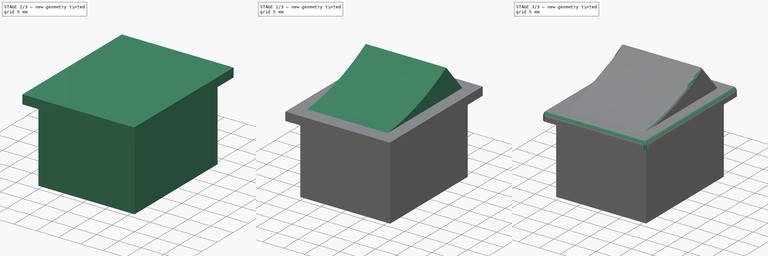
[diagram: build sequence overview — one tinted view per stage of 3, left to right]
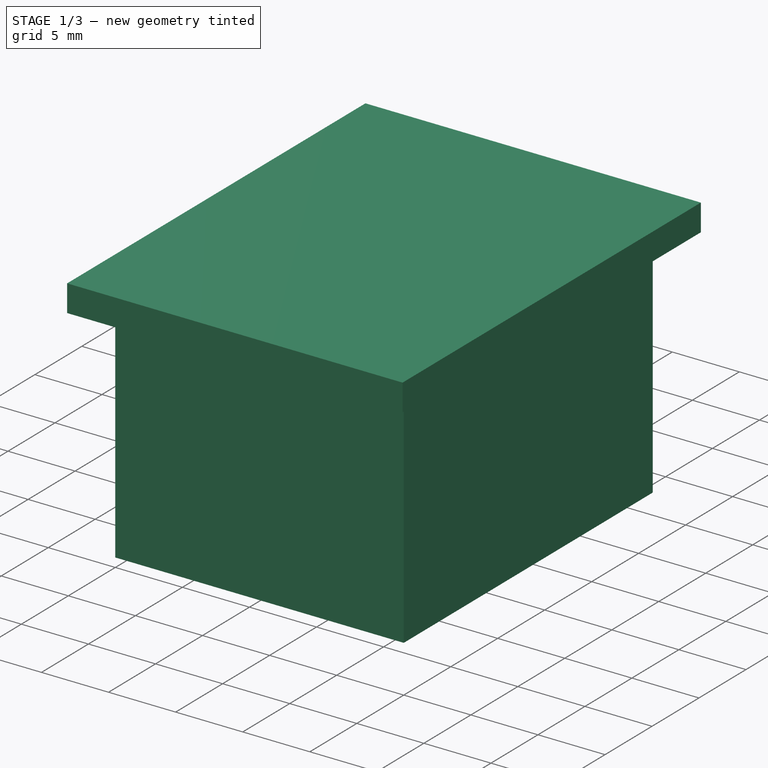
[diagram: stage 1 of 3 — iso view after this stage's code; geometry added in this stage tinted green]
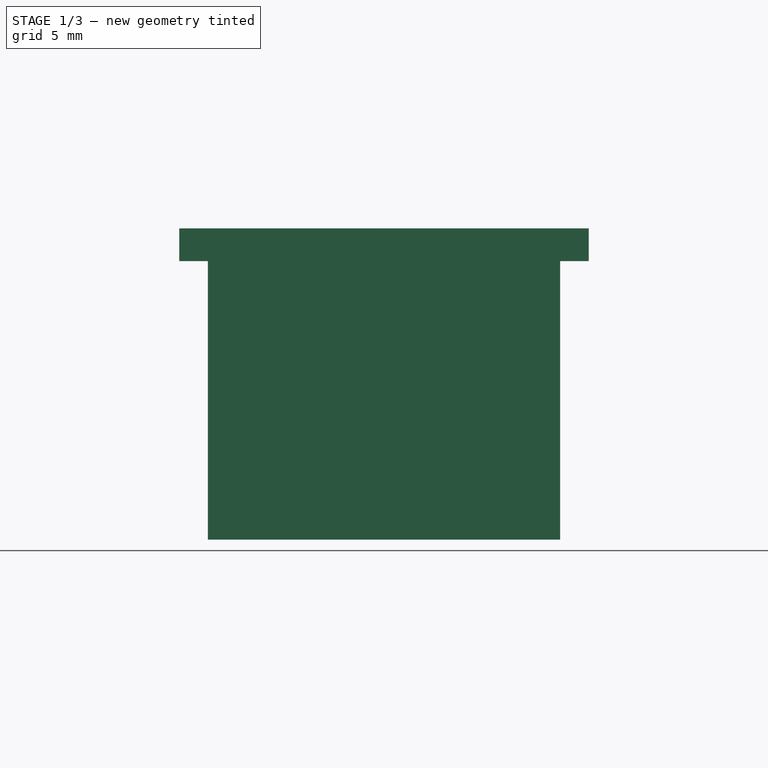
[diagram: stage 1 of 3 — front view after this stage's code; geometry added in this stage tinted green]
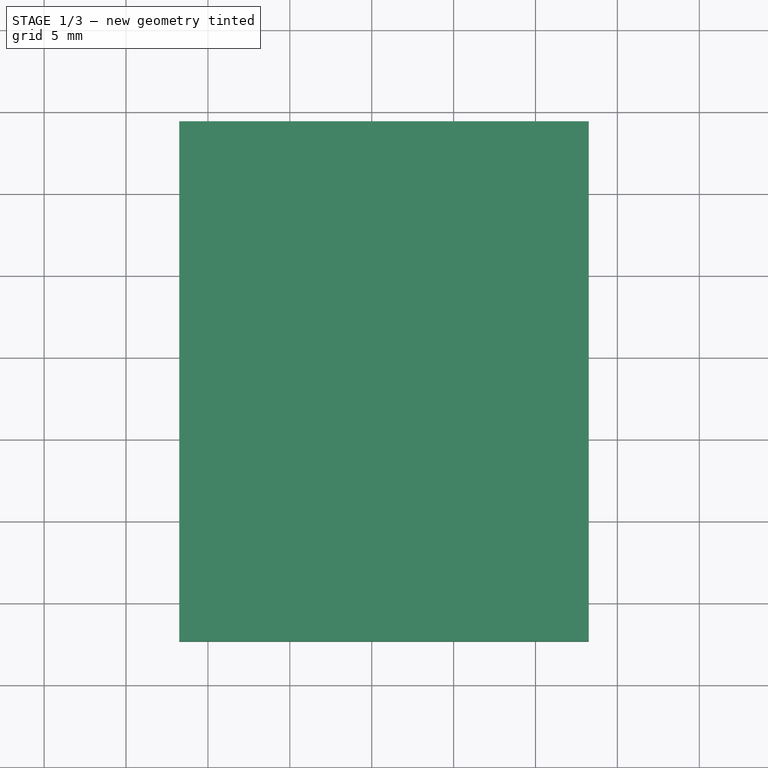
[diagram: stage 1 of 3 — top view after this stage's code; geometry added in this stage tinted green]
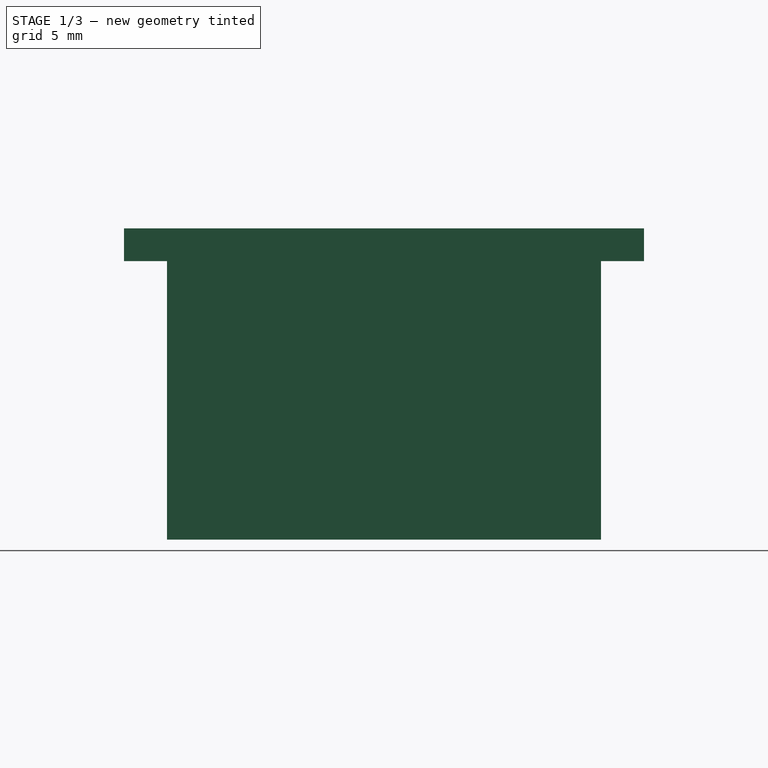
[diagram: stage 1 of 3 — right view after this stage's code; geometry added in this stage tinted green]
FCSTD DOCUMENT  (FreeCAD 0.17R8934 (Git))
Label: power_switch
License: All rights reserved
LicenseURL: http://en.wikipedia.org/wiki/All_rights_reserved
objects: Sketcher::SketchObject×4, PartDesign::Pad×3, PartDesign::Fillet×2, PartDesign::Pocket×1, PartDesign::Body×1, Part::Feature×1
note: 16 computed .brp shape members not serialized (recipe doc carries the construction recipe); baked Part::Feature solids carry a one-line shape summary decoded from their .brp

FEATURE [Sketcher::SketchObject] Sketch
  MapMode = 5
  Support = -> [XY_Plane]
  sketch-geometry (4):
    g0: LineSegment StartX=0 StartY=0 StartZ=0 EndX=21.5 EndY=0 EndZ=0
    g1: LineSegment StartX=21.5 StartY=0 StartZ=0 EndX=21.5 EndY=26.5 EndZ=0
    g2: LineSegment StartX=21.5 StartY=26.5 StartZ=0 EndX=0 EndY=26.5 EndZ=0
    g3: LineSegment StartX=0 StartY=26.5 StartZ=0 EndX=0 EndY=0 EndZ=0
  constraints (11):
    c: Coincident(g0,g1)
    c: Coincident(g1,g2)
    c: Coincident(g2,g3)
    c: Coincident(g3,g0)
    c: Horizontal(g0)
    c: Horizontal(g2)
    c: Vertical(g1)
    c: Vertical(g3)
    c: Coincident(g0,g-1)
    c: DistanceY(g3,g3) = 26.5
    c: DistanceX(g2,g2) = 21.5
FEATURE [PartDesign::Pad] Pad
  Length = 17
  Length2 = 100
  Profile = -> Sketch
  Type = 0
FEATURE [Sketcher::SketchObject] Sketch001
  ExternalGeometry = -> [Pad]
  MapMode = 5
  Placement = pos=(0,0,17) rot=(0,0,1;0rad)
  Support = -> [Pad]
  sketch-geometry (4):
    g0: LineSegment StartX=-1.75 StartY=-2.625 StartZ=0 EndX=23.25 EndY=-2.625 EndZ=0
    g1: LineSegment StartX=23.25 StartY=-2.625 StartZ=0 EndX=23.25 EndY=29.125 EndZ=0
    g2: LineSegment StartX=23.25 StartY=29.125 StartZ=0 EndX=-1.75 EndY=29.125 EndZ=0
    g3: LineSegment StartX=-1.75 StartY=29.125 StartZ=0 EndX=-1.75 EndY=-2.625 EndZ=0
  constraints (12):
    c: Coincident(g0,g1)
    c: Coincident(g1,g2)
    c: Coincident(g2,g3)
    c: Coincident(g3,g0)
    c: Horizontal(g0)
    c: Horizontal(g2)
    c: Vertical(g1)
    c: Vertical(g3)
    c: DistanceX(g2,g2) = 25
    c: DistanceY(g3,g3) = 31.75
    c: DistanceX(g0,g-1) = 1.75
    c: DistanceY(g0,g-1) = 2.625
FEATURE [PartDesign::Pad] Pad001
  BaseFeature = -> Pad
  Length = 2
  Length2 = 100
  Profile = -> Sketch001
  Type = 0
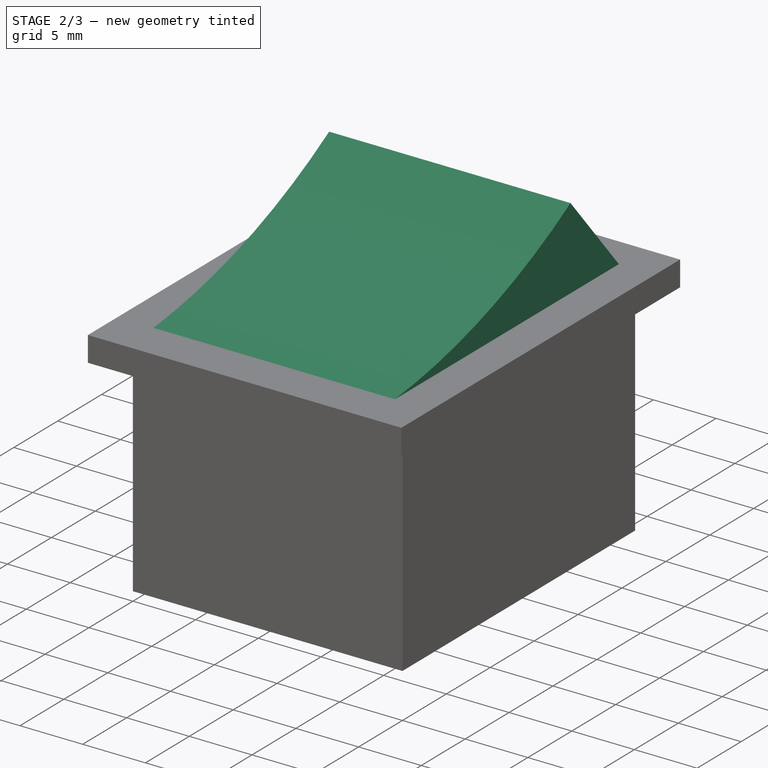
[diagram: stage 2 of 3 — iso view after this stage's code; geometry added in this stage tinted green]
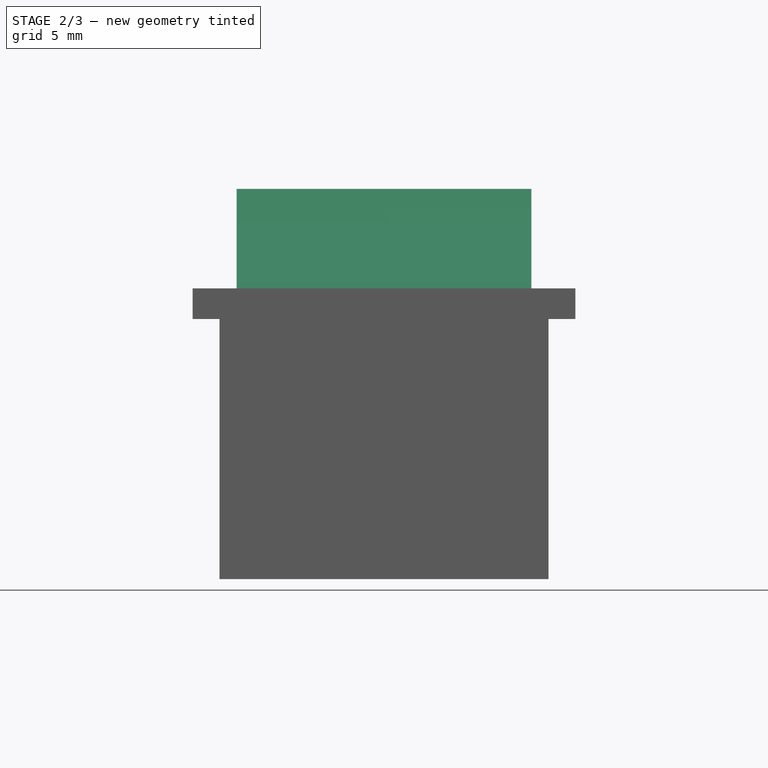
[diagram: stage 2 of 3 — front view after this stage's code; geometry added in this stage tinted green]
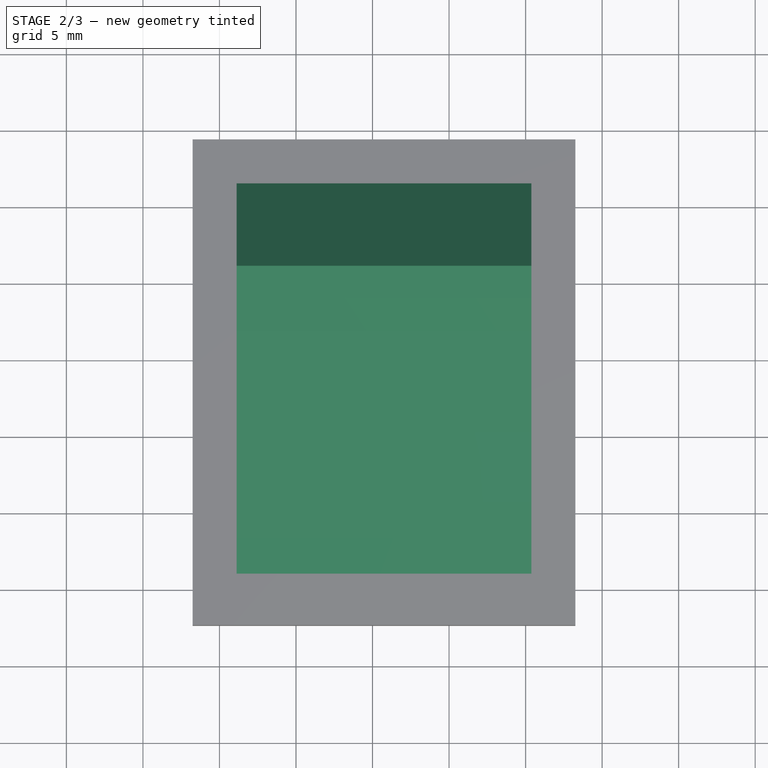
[diagram: stage 2 of 3 — top view after this stage's code; geometry added in this stage tinted green]
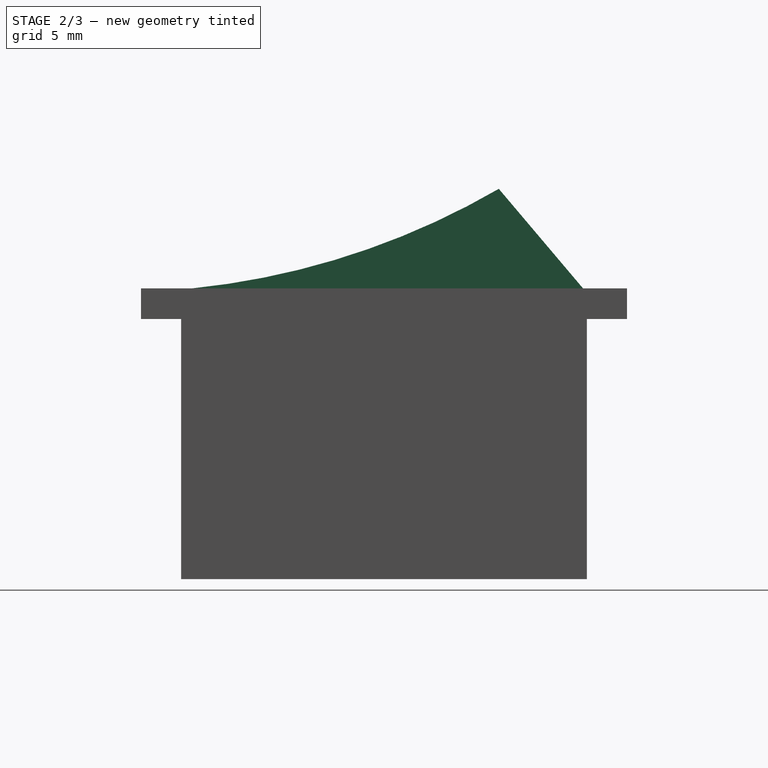
[diagram: stage 2 of 3 — right view after this stage's code; geometry added in this stage tinted green]
FEATURE [Sketcher::SketchObject] Sketch002
  ExternalGeometry = -> [Pad001]
  MapMode = 5
  Placement = pos=(0,0,19) rot=(0,0,1;0rad)
  Support = -> [Pad001]
  sketch-geometry (4):
    g0: LineSegment StartX=1.125 StartY=26.25 StartZ=0 EndX=20.375 EndY=26.25 EndZ=0
    g1: LineSegment StartX=20.375 StartY=26.25 StartZ=0 EndX=20.375 EndY=0.75 EndZ=0
    g2: LineSegment StartX=20.375 StartY=0.75 StartZ=0 EndX=1.125 EndY=0.75 EndZ=0
    g3: LineSegment StartX=1.125 StartY=0.75 StartZ=0 EndX=1.125 EndY=26.25 EndZ=0
  constraints (13):
    c: Coincident(g0,g1)
    c: Coincident(g1,g2)
    c: Coincident(g2,g3)
    c: Coincident(g3,g0)
    c: Horizontal(g0)
    c: Horizontal(g2)
    c: Vertical(g1)
    c: Vertical(g3)
    c: DistanceX(g2,g2) = 19.25
    c: DistanceY(g1,g1) = 25.5
    c: DistanceX(g0,g-3) = 2.875
    c: DistanceY(g0,g-3) = 2.875
    c: DistanceX(g-3,g-3) = 25
FEATURE [PartDesign::Pad] Pad002
  BaseFeature = -> Pad001
  Length = 6.5
  Length2 = 100
  Profile = -> Sketch002
  Type = 0
FEATURE [Sketcher::SketchObject] Sketch003
  ExternalGeometry = -> [Pad002]
  MapMode = 5
  Placement = pos=(20.375,0,0) rot=(0.57735,0.57735,0.57735;2.0944rad)
  Support = -> [Pad002]
  sketch-geometry (5):
    g0: LineSegment StartX=26.25 StartY=19 StartZ=0 EndX=20.75 EndY=25.5 EndZ=0
    g1: LineSegment StartX=0.75 StartY=19 StartZ=0 EndX=0.75 EndY=29 EndZ=0
    g2: LineSegment StartX=0.75 StartY=29 StartZ=0 EndX=26.25 EndY=29 EndZ=0
    g3: LineSegment StartX=26.25 StartY=29 StartZ=0 EndX=26.25 EndY=19 EndZ=0
    g4: ArcOfCircle CenterX=-4.35871 CenterY=68.7383 CenterZ=0 NormalX=0 NormalY=0 NormalZ=1 Radius=50 StartAngle=4.81474 EndAngle=5.2385
  constraints (14):
    c: Vertical(g1)
    c: Coincident(g1,g2)
    c: Horizontal(g2)
    c: Coincident(g2,g3)
    c: Coincident(g0,g3)
    c: Vertical(g3)
    c: DistanceX(g0,g2) = 5.5
    c: Coincident(g4,g0)
    c: Coincident(g4,g1)
    c: Coincident(g0,g-4)
    c: Coincident(g1,g-3)
    c: PointOnObject(g0,g-5)
    c: Radius(g4) = 50
    c: DistanceY(g1,g1) = 10
FEATURE [PartDesign::Pocket] Pocket
  BaseFeature = -> Pad002
  Length = 0
  Profile = -> Sketch003
  Type = 3
  UpToFace = -> Pad002 [Face13]
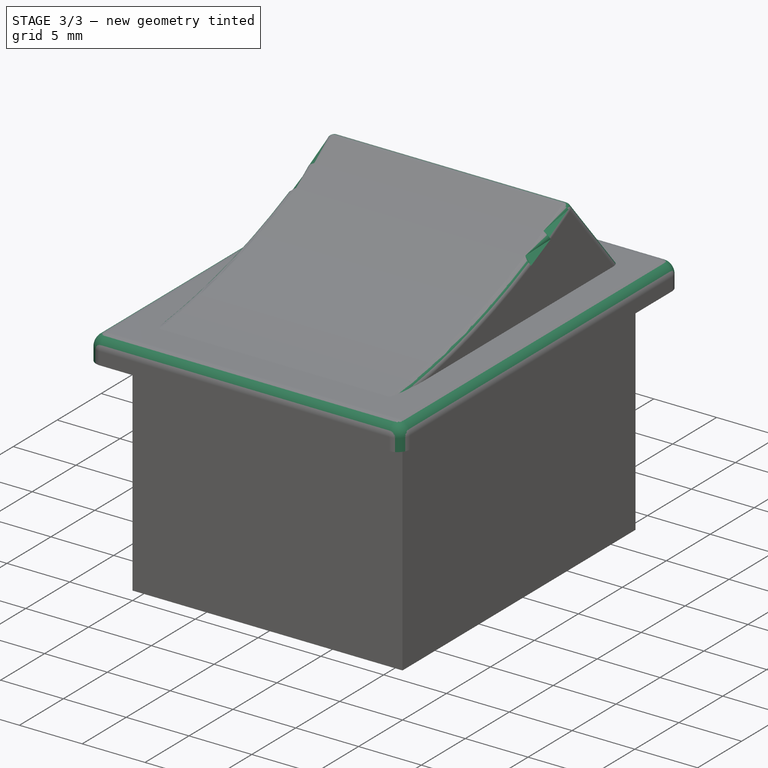
[diagram: stage 3 of 3 — iso view after this stage's code; geometry added in this stage tinted green]
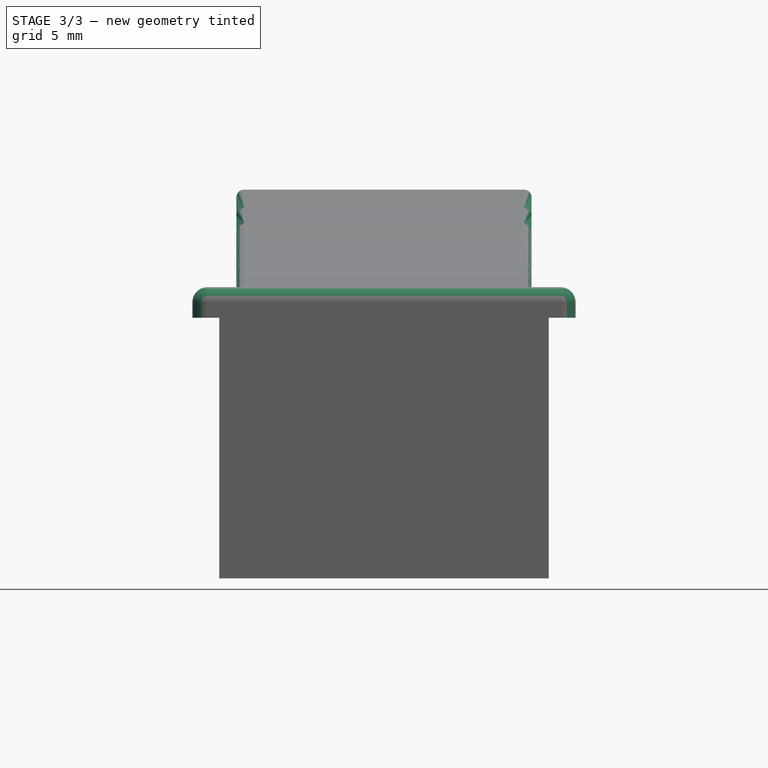
[diagram: stage 3 of 3 — front view after this stage's code; geometry added in this stage tinted green]
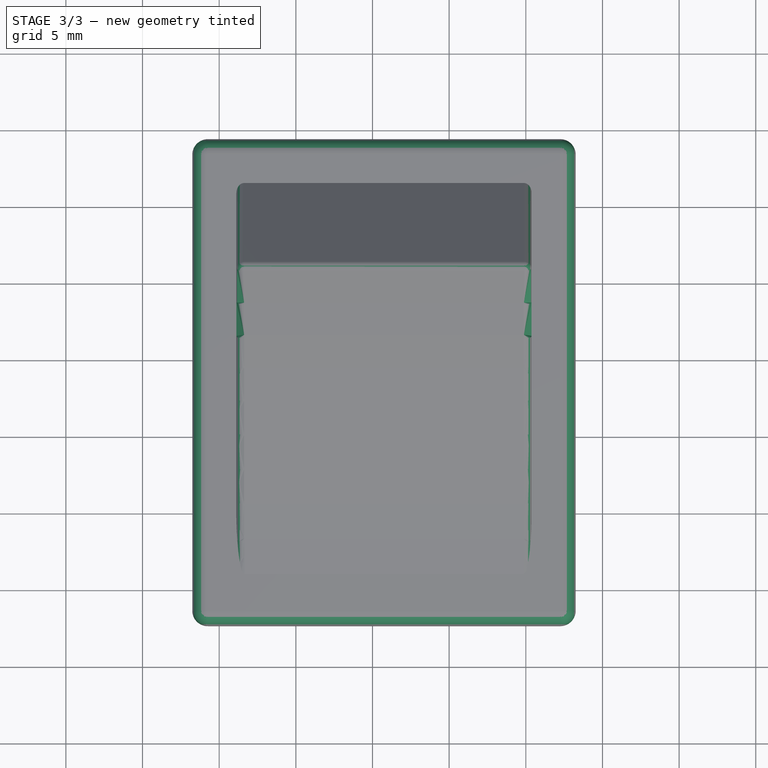
[diagram: stage 3 of 3 — top view after this stage's code; geometry added in this stage tinted green]
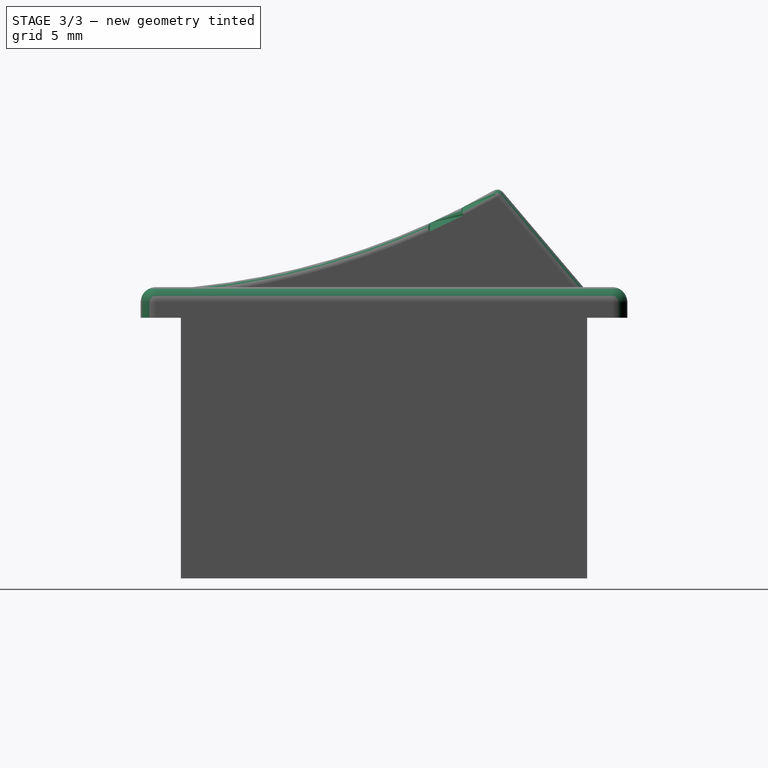
[diagram: stage 3 of 3 — right view after this stage's code; geometry added in this stage tinted green]
FEATURE [PartDesign::Fillet] Fillet
  Base = -> Pocket [Edge30,Edge32,Edge33,Edge31,Edge29]
  BaseFeature = -> Pocket
  Radius = 0.5
FEATURE [PartDesign::Fillet] Fillet001
  Base = -> Fillet [Edge11,Edge32,Edge12,Edge30,Edge10,Edge9,Edge28,Edge27]
  BaseFeature = -> Fillet
  Radius = 1
FEATURE [PartDesign::Body] Body
  Model = -> [Sketch,Pad,Sketch001,Pad001,Sketch002,Pad002,Sketch003,Pocket,Fillet,Fillet001]
  Origin = -> BodyOrigin
  Tip = -> Fillet001
FEATURE [Part::Feature] Fillet001001  label="Fillet002"
  shape: bbox 25 x 31.75 x 25.36 mm, 34 faces (baked)
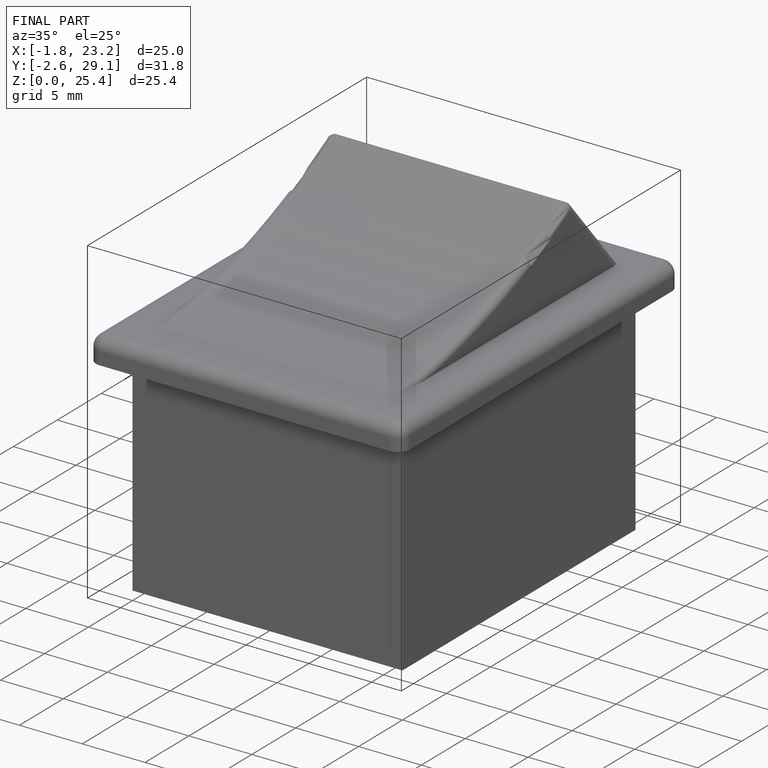
[diagram: finished part — iso view with bounding-box wireframe]
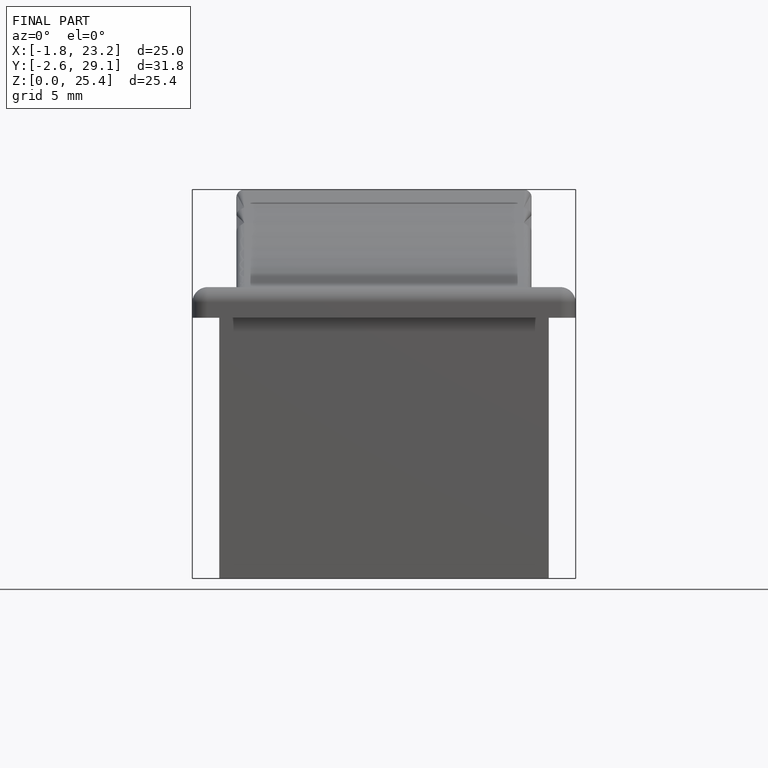
[diagram: finished part — front view with bounding-box wireframe]
